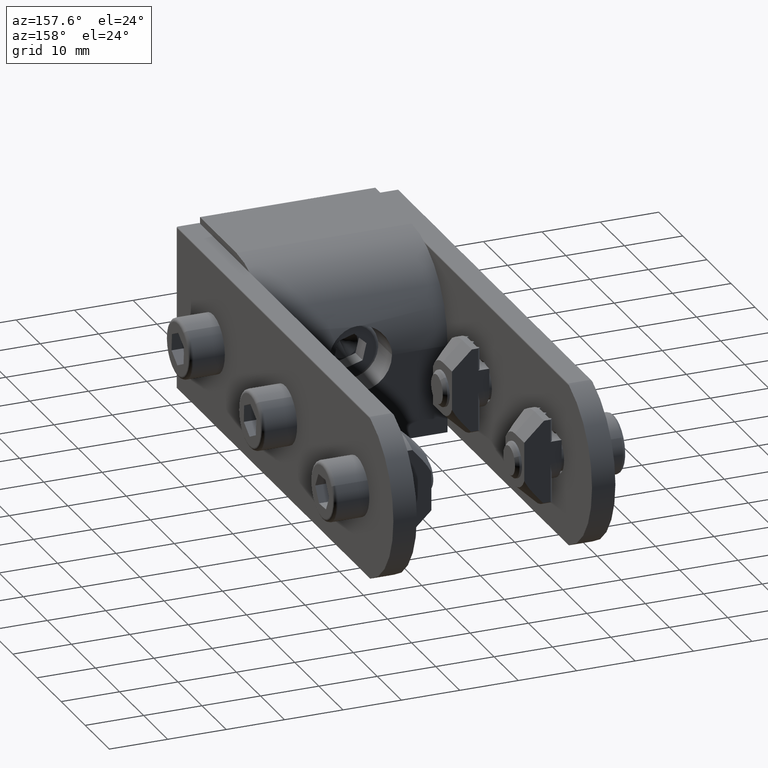
[diagram: clean part render]
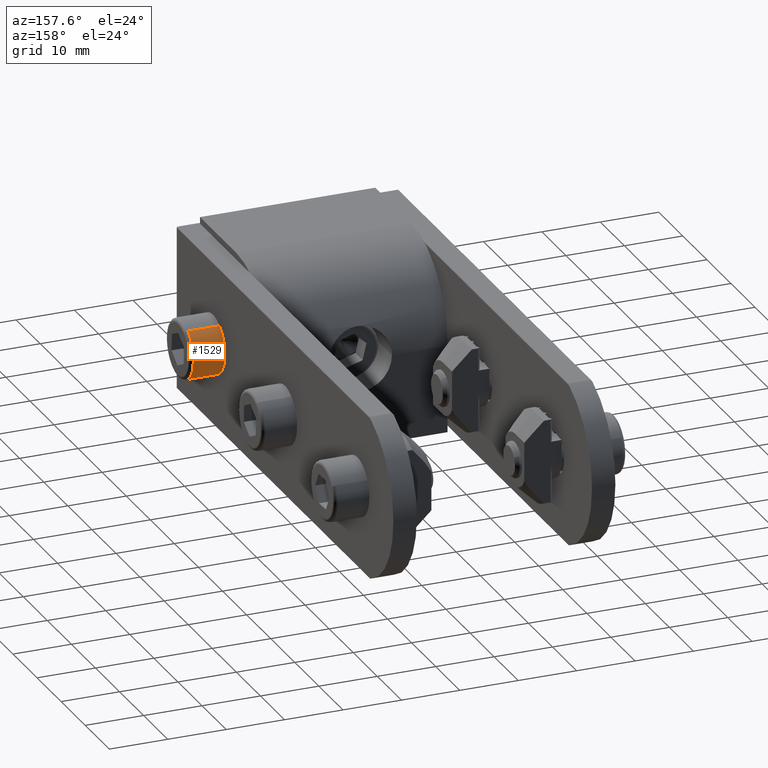
[diagram: same view with one face highlighted and labeled with its STEP entity id]
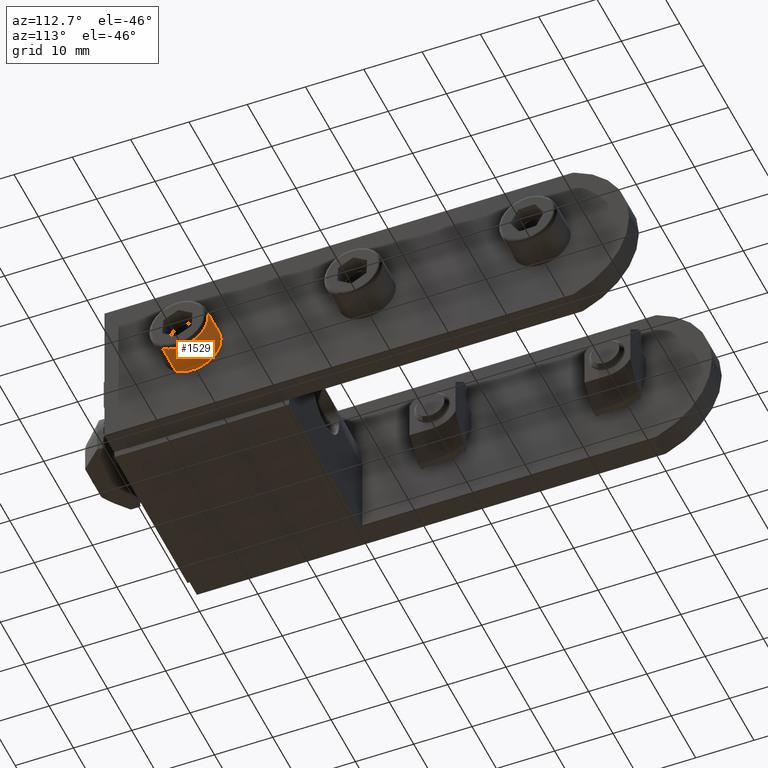
[diagram: same view with one face highlighted and labeled with its STEP entity id]
A machine part, auxiliary view. The second image highlights one B-rep face of the part: STEP entity #1529.
A second angle (auxiliary view) of the same face is appended — the face is thin or edge-on in the first view.
In plain terms, the highlighted cylindrical surface (edge-blend (fillet) strip) has radius 5 mm, axis along (1, -0, 0).
Its self-contained STEP definition (entity closure, byte-faithful):
#86 = CARTESIAN_POINT ( 'NONE',  ( -305.9400589040640170, 141.7785353260753709, 194.8677432571120960 ) ) ;
#98 = CARTESIAN_POINT ( 'NONE',  ( -311.3400589040639375, 141.7785353260753709, 199.8677432571120960 ) ) ;
#318 = AXIS2_PLACEMENT_3D ( 'NONE', #3071, #2609, #4366 ) ;
#428 = DIRECTION ( 'NONE',  ( -1.000000000000000000, 0.000000000000000000, 0.000000000000000000 ) ) ;
#516 = CYLINDRICAL_SURFACE ( 'NONE', #318, 5.000000000000004441 ) ;
#550 = DIRECTION ( 'NONE',  ( -1.000000000000000000, 0.000000000000000000, 0.000000000000000000 ) ) ;
#926 = VERTEX_POINT ( 'NONE', #5304 ) ;
#928 = ORIENTED_EDGE ( 'NONE', *, *, #4379, .T. ) ;
#1352 = CARTESIAN_POINT ( 'NONE',  ( -305.9400589040640170, 141.7785353260753709, 199.8677432571120960 ) ) ;
#1384 = DIRECTION ( 'NONE',  ( -1.000000000000000000, 0.000000000000000000, 0.000000000000000000 ) ) ;
#1468 = VECTOR ( 'NONE', #428, 1000.000000000000000 ) ;
#1500 = EDGE_CURVE ( 'NONE', #2875, #5291, #4454, .T. ) ;
#1529 = ADVANCED_FACE ( 'NONE', ( #3467 ), #516, .T. ) ;
#1675 = CARTESIAN_POINT ( 'NONE',  ( -305.9400589040640170, 141.7785353260753709, 189.8677432571120960 ) ) ;
#1831 = EDGE_CURVE ( 'NONE', #926, #3392, #3447, .T. ) ;
#1969 = DIRECTION ( 'NONE',  ( 0.000000000000000000, 0.000000000000000000, 1.000000000000000000 ) ) ;
#2349 = ORIENTED_EDGE ( 'NONE', *, *, #4040, .T. ) ;
#2609 = DIRECTION ( 'NONE',  ( -1.000000000000000000, 0.000000000000000000, 0.000000000000000000 ) ) ;
#2729 = DIRECTION ( 'NONE',  ( 0.000000000000000000, 0.000000000000000000, 1.000000000000000000 ) ) ;
#2826 = DIRECTION ( 'NONE',  ( 1.000000000000000000, -0.000000000000000000, -0.000000000000000000 ) ) ;
#2853 = CARTESIAN_POINT ( 'NONE',  ( -305.9400589040640170, 141.7785353260753709, 199.8677432571120960 ) ) ;
#2875 = VERTEX_POINT ( 'NONE', #2853 ) ;
#3071 = CARTESIAN_POINT ( 'NONE',  ( -305.9400589040640170, 141.7785353260753709, 194.8677432571120960 ) ) ;
#3392 = VERTEX_POINT ( 'NONE', #5568 ) ;
#3447 = LINE ( 'NONE', #1675, #1468 ) ;
#3467 = FACE_OUTER_BOUND ( 'NONE', #5043, .T. ) ;
#3473 = AXIS2_PLACEMENT_3D ( 'NONE', #86, #550, #2729 ) ;
#3668 = CARTESIAN_POINT ( 'NONE',  ( -311.3400589040639375, 141.7785353260753709, 194.8677432571120960 ) ) ;
#3745 = ORIENTED_EDGE ( 'NONE', *, *, #1831, .F. ) ;
#4040 = EDGE_CURVE ( 'NONE', #5291, #3392, #4718, .T. ) ;
#4086 = VECTOR ( 'NONE', #1384, 1000.000000000000000 ) ;
#4140 = CIRCLE ( 'NONE', #3473, 5.000000000000004441 ) ;
#4366 = DIRECTION ( 'NONE',  ( 0.000000000000000000, 0.000000000000000000, 1.000000000000000000 ) ) ;
#4379 = EDGE_CURVE ( 'NONE', #926, #2875, #4140, .T. ) ;
#4445 = AXIS2_PLACEMENT_3D ( 'NONE', #3668, #2826, #1969 ) ;
#4454 = LINE ( 'NONE', #1352, #4086 ) ;
#4718 = CIRCLE ( 'NONE', #4445, 5.000000000000004441 ) ;
#5043 = EDGE_LOOP ( 'NONE', ( #3745, #928, #5638, #2349 ) ) ;
#5291 = VERTEX_POINT ( 'NONE', #98 ) ;
#5304 = CARTESIAN_POINT ( 'NONE',  ( -305.9400589040640170, 141.7785353260753709, 189.8677432571120960 ) ) ;
#5568 = CARTESIAN_POINT ( 'NONE',  ( -311.3400589040639375, 141.7785353260753709, 189.8677432571120960 ) ) ;
#5638 = ORIENTED_EDGE ( 'NONE', *, *, #1500, .T. ) ;